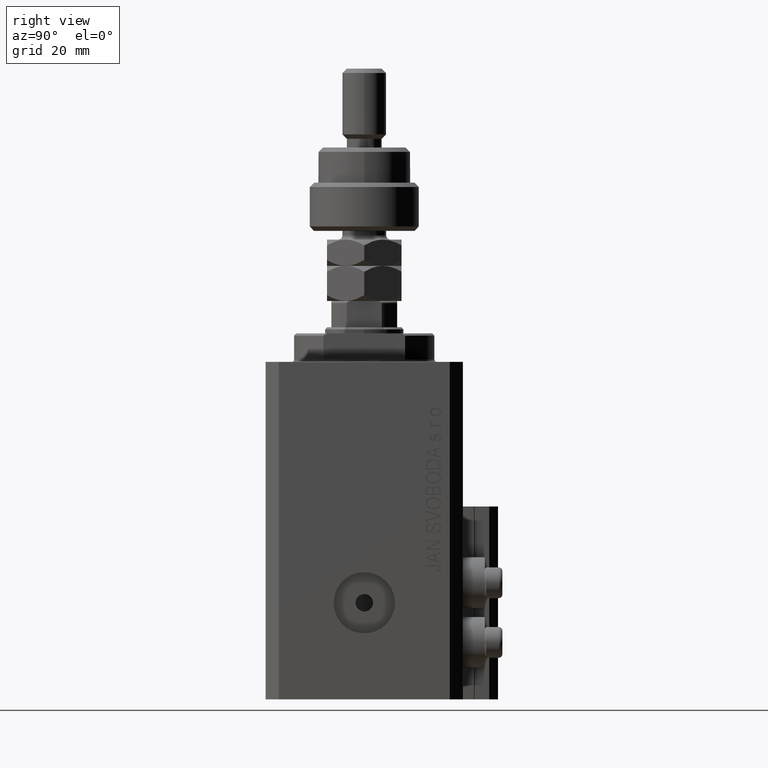
[diagram: clean part render]
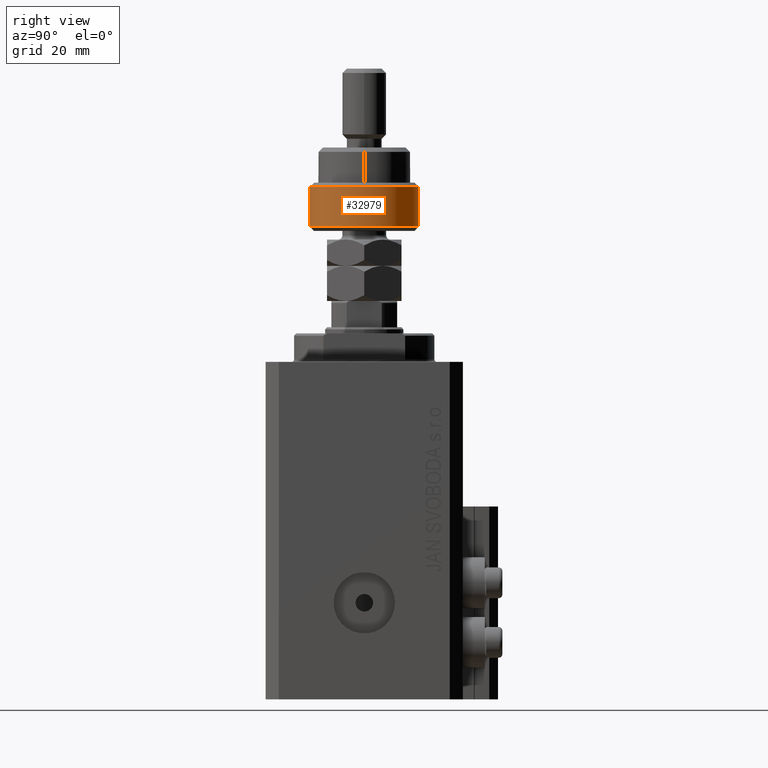
[diagram: same view with one face highlighted and labeled with its STEP entity id]
A machine part, right view. The second image highlights one B-rep face of the part: STEP entity #32979.
In plain terms, the highlighted cylindrical surface (partial cylindrical patch) has radius 12.5 mm, axis along (-0, -0, -1).
Its self-contained STEP definition (entity closure, byte-faithful):
#27 = CARTESIAN_POINT ( 'NONE',  ( 0.000000000000000000, 0.000000000000000000, 10.00000000000000000 ) ) ;
#523 = VECTOR ( 'NONE', #48383, 1000.000000000000000 ) ;
#2724 = DIRECTION ( 'NONE',  ( -0.000000000000000000, -0.000000000000000000, -1.000000000000000000 ) ) ;
#3957 = CARTESIAN_POINT ( 'NONE',  ( 12.50000000000000000, 0.000000000000000000, 0.9999999999999956701 ) ) ;
#5818 = EDGE_CURVE ( 'NONE', #21143, #39915, #6353, .T. ) ;
#5828 = EDGE_LOOP ( 'NONE', ( #31935, #17095, #10538, #14856, #23418 ) ) ;
#6353 = LINE ( 'NONE', #41672, #35147 ) ;
#8506 = EDGE_CURVE ( 'NONE', #37044, #29119, #44585, .T. ) ;
#8818 = DIRECTION ( 'NONE',  ( 1.000000000000000000, 0.000000000000000000, 0.000000000000000000 ) ) ;
#8983 = CARTESIAN_POINT ( 'NONE',  ( -11.22497216032182443, 5.500000000000000000, 0.9999999999999956701 ) ) ;
#10129 = CYLINDRICAL_SURFACE ( 'NONE', #50297, 12.50000000000000000 ) ;
#10184 = DIRECTION ( 'NONE',  ( -0.000000000000000000, -0.000000000000000000, -1.000000000000000000 ) ) ;
#10369 = DIRECTION ( 'NONE',  ( -1.000000000000000000, 0.000000000000000000, 0.000000000000000000 ) ) ;
#10538 = ORIENTED_EDGE ( 'NONE', *, *, #5818, .T. ) ;
#12968 = CARTESIAN_POINT ( 'NONE',  ( -11.22497216032182443, 5.500000000000000000, 10.00000000000000000 ) ) ;
#12994 = CARTESIAN_POINT ( 'NONE',  ( 0.000000000000000000, 0.000000000000000000, 11.00000000000000000 ) ) ;
#13706 = AXIS2_PLACEMENT_3D ( 'NONE', #27, #15546, #18858 ) ;
#14164 = CIRCLE ( 'NONE', #32821, 12.50000000000000000 ) ;
#14856 = ORIENTED_EDGE ( 'NONE', *, *, #39611, .T. ) ;
#15546 = DIRECTION ( 'NONE',  ( 0.000000000000000000, 0.000000000000000000, -1.000000000000000000 ) ) ;
#16064 = CARTESIAN_POINT ( 'NONE',  ( -11.22497216032182088, -5.500000000000007105, 10.00000000000000000 ) ) ;
#17095 = ORIENTED_EDGE ( 'NONE', *, *, #29307, .T. ) ;
#18858 = DIRECTION ( 'NONE',  ( 1.000000000000000000, 0.000000000000000000, 0.000000000000000000 ) ) ;
#19953 = DIRECTION ( 'NONE',  ( -0.000000000000000000, -0.000000000000000000, 1.000000000000000000 ) ) ;
#21012 = EDGE_CURVE ( 'NONE', #22573, #29119, #24993, .T. ) ;
#21143 = VERTEX_POINT ( 'NONE', #16064 ) ;
#22573 = VERTEX_POINT ( 'NONE', #12968 ) ;
#23418 = ORIENTED_EDGE ( 'NONE', *, *, #8506, .T. ) ;
#24749 = CARTESIAN_POINT ( 'NONE',  ( -11.22497216032182443, 5.500000000000000000, 12.50000000000000000 ) ) ;
#24993 = LINE ( 'NONE', #24749, #523 ) ;
#25057 = CARTESIAN_POINT ( 'NONE',  ( 0.000000000000000000, 0.000000000000000000, 0.9999999999999956701 ) ) ;
#26696 = CIRCLE ( 'NONE', #13706, 12.50000000000000000 ) ;
#27787 = CARTESIAN_POINT ( 'NONE',  ( -11.22497216032182088, -5.500000000000007105, 0.9999999999999956701 ) ) ;
#28093 = DIRECTION ( 'NONE',  ( 1.000000000000000000, 0.000000000000000000, 0.000000000000000000 ) ) ;
#29119 = VERTEX_POINT ( 'NONE', #8983 ) ;
#29307 = EDGE_CURVE ( 'NONE', #22573, #21143, #26696, .T. ) ;
#31890 = CARTESIAN_POINT ( 'NONE',  ( 0.000000000000000000, 0.000000000000000000, 0.9999999999999956701 ) ) ;
#31935 = ORIENTED_EDGE ( 'NONE', *, *, #21012, .F. ) ;
#32821 = AXIS2_PLACEMENT_3D ( 'NONE', #31890, #19953, #28093 ) ;
#32979 = ADVANCED_FACE ( 'NONE', ( #45169 ), #10129, .T. ) ;
#35147 = VECTOR ( 'NONE', #10184, 1000.000000000000000 ) ;
#37044 = VERTEX_POINT ( 'NONE', #3957 ) ;
#39611 = EDGE_CURVE ( 'NONE', #39915, #37044, #14164, .T. ) ;
#39714 = AXIS2_PLACEMENT_3D ( 'NONE', #25057, #43613, #8818 ) ;
#39915 = VERTEX_POINT ( 'NONE', #27787 ) ;
#41672 = CARTESIAN_POINT ( 'NONE',  ( -11.22497216032182088, -5.500000000000007105, 12.50000000000000000 ) ) ;
#43613 = DIRECTION ( 'NONE',  ( -0.000000000000000000, -0.000000000000000000, 1.000000000000000000 ) ) ;
#44585 = CIRCLE ( 'NONE', #39714, 12.50000000000000000 ) ;
#45169 = FACE_OUTER_BOUND ( 'NONE', #5828, .T. ) ;
#48383 = DIRECTION ( 'NONE',  ( -0.000000000000000000, -0.000000000000000000, -1.000000000000000000 ) ) ;
#50297 = AXIS2_PLACEMENT_3D ( 'NONE', #12994, #2724, #10369 ) ;